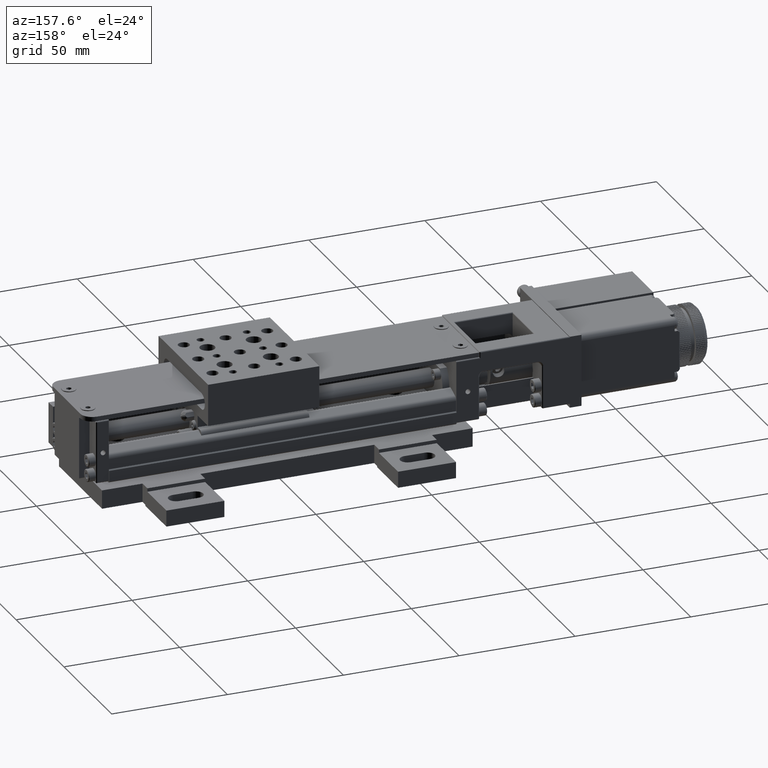
[diagram: clean part render]
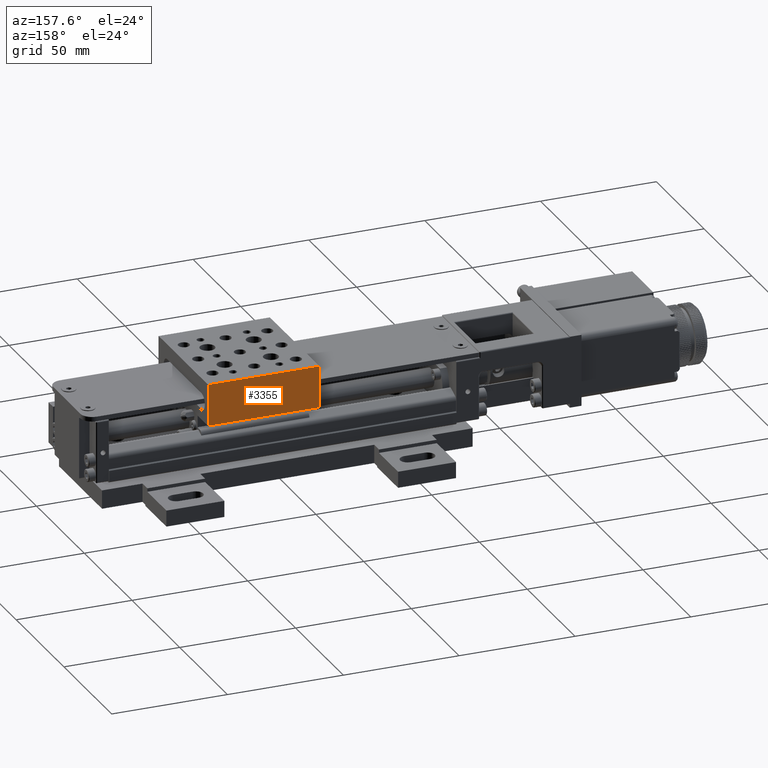
[diagram: same view with one face highlighted and labeled with its STEP entity id]
A machine part, auxiliary view. The second image highlights one B-rep face of the part: STEP entity #3355.
In plain terms, the highlighted planar face has unit normal (0, 1, 0).
Its self-contained STEP definition (entity closure, byte-faithful):
#1431=PLANE('',#42398);
#3355=ADVANCED_FACE('',(#5692),#1431,.T.);
#5692=FACE_OUTER_BOUND('',#8136,.T.);
#8136=EDGE_LOOP('',(#17341,#17342,#17343,#17344));
#17341=ORIENTED_EDGE('',*,*,#26762,.T.);
#17342=ORIENTED_EDGE('',*,*,#26953,.F.);
#17343=ORIENTED_EDGE('',*,*,#26954,.T.);
#17344=ORIENTED_EDGE('',*,*,#26955,.T.);
#26762=EDGE_CURVE('',#38886,#38887,#32183,.T.);
#26953=EDGE_CURVE('',#39038,#38887,#32244,.T.);
#26954=EDGE_CURVE('',#39038,#39039,#32245,.T.);
#26955=EDGE_CURVE('',#39039,#38886,#32246,.T.);
#32183=B_SPLINE_CURVE_WITH_KNOTS('',1,(#75052,#75053),.UNSPECIFIED.,.F.,
 .F.,(2,2),(-48.0000000000001,0.),.UNSPECIFIED.);
#32244=B_SPLINE_CURVE_WITH_KNOTS('',1,(#75776,#75777),.UNSPECIFIED.,.F.,
 .F.,(2,2),(0.,18.),.UNSPECIFIED.);
#32245=B_SPLINE_CURVE_WITH_KNOTS('',1,(#75778,#75779),.UNSPECIFIED.,.F.,
 .F.,(2,2),(0.,48.0000000000001),.UNSPECIFIED.);
#32246=B_SPLINE_CURVE_WITH_KNOTS('',1,(#75780,#75781),.UNSPECIFIED.,.F.,
 .F.,(2,2),(0.,18.),.UNSPECIFIED.);
#38886=VERTEX_POINT('',#60454);
#38887=VERTEX_POINT('',#60455);
#39038=VERTEX_POINT('',#60606);
#39039=VERTEX_POINT('',#60607);
#42398=AXIS2_PLACEMENT_3D('',#51900,#44464,$);
#44464=DIRECTION('',(0.,1.,0.));
#51900=CARTESIAN_POINT('',(90.2172073682379,22.7999991585124,27.0815596025046));
#60454=CARTESIAN_POINT('',(85.2972073682379,22.7999991585124,29.0015596025046));
#60455=CARTESIAN_POINT('',(37.2972073682378,22.7999991585126,29.0015596025046));
#60606=CARTESIAN_POINT('',(37.2972073682378,22.7999991585127,47.0015596025046));
#60607=CARTESIAN_POINT('',(85.2972073682379,22.7999991585125,47.0015596025046));
#75052=CARTESIAN_POINT('',(85.2972073682379,22.7999991585124,29.0015596025046));
#75053=CARTESIAN_POINT('',(37.2972073682378,22.7999991585126,29.0015596025046));
#75776=CARTESIAN_POINT('',(37.2972073682378,22.7999991585127,47.0015596025046));
#75777=CARTESIAN_POINT('',(37.2972073682378,22.7999991585126,29.0015596025046));
#75778=CARTESIAN_POINT('',(37.2972073682378,22.7999991585127,47.0015596025046));
#75779=CARTESIAN_POINT('',(85.2972073682379,22.7999991585125,47.0015596025046));
#75780=CARTESIAN_POINT('',(85.2972073682379,22.7999991585125,47.0015596025046));
#75781=CARTESIAN_POINT('',(85.2972073682379,22.7999991585124,29.0015596025046));